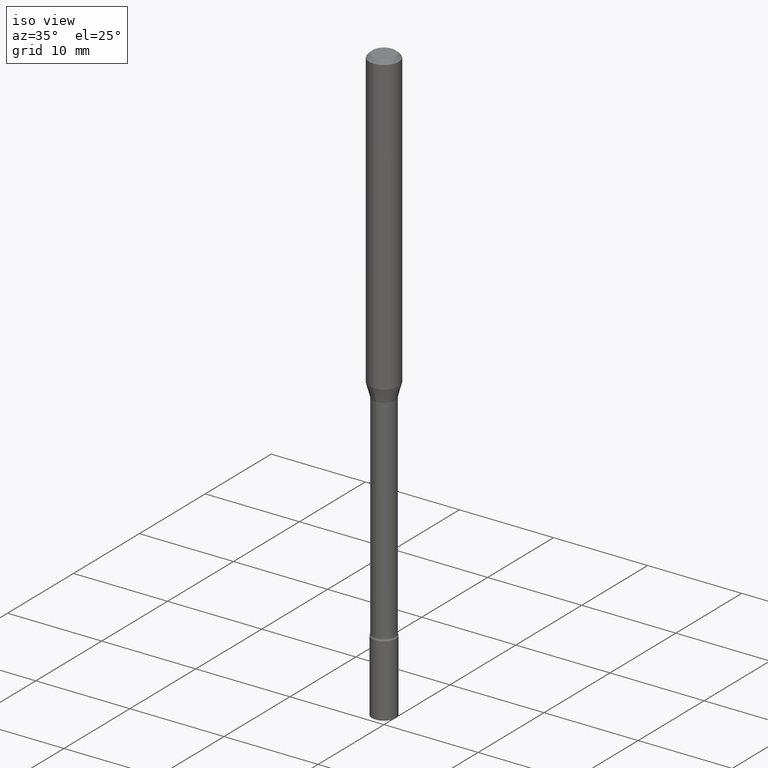
[diagram: clean part render]
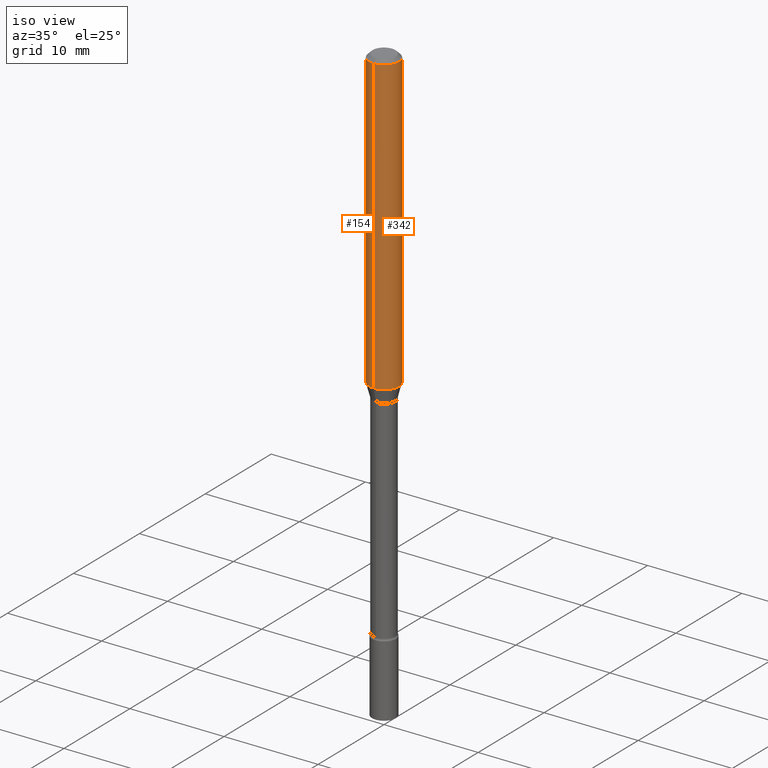
[diagram: same view with one multi-face feature highlighted, each face labeled with its STEP entity id]
A machine part, iso view. The highlighted faces form ONE feature: a constant-radius fillet chain: 2 tangent blend faces with common blend radius 1.5875 mm. The faces share edges in the B-rep.
Their STEP definitions:
[1] entity #154 (Cylinder):
#9 = CIRCLE ( 'NONE', #197, 0.06250000000000000000 ) ;
#15 = FACE_OUTER_BOUND ( 'NONE', #52, .T. ) ;
#24 = CARTESIAN_POINT ( 'NONE',  ( -4.364351673553610517E-16, -0.06250000000000431599, -1.242153212482682623 ) ) ;
#45 = DIRECTION ( 'NONE',  ( -2.445545263393186245E-29, 3.491371847769544536E-15, 1.000000000000000000 ) ) ;
#52 = EDGE_LOOP ( 'NONE', ( #332, #376, #435, #519 ) ) ;
#83 = CARTESIAN_POINT ( 'NONE',  ( -4.364351673553912750E-16, -0.06250000000000005551, -0.01499999999999981209 ) ) ;
#113 = CARTESIAN_POINT ( 'NONE',  ( 4.440892098500625669E-16, 0.06250000000000000000, -2.182107404855965335E-16 ) ) ;
#134 = CARTESIAN_POINT ( 'NONE',  ( 0.000000000000000000, 0.000000000000000000, 0.000000000000000000 ) ) ;
#139 = LINE ( 'NONE', #337, #394 ) ;
#154 = ADVANCED_FACE ( 'NONE', ( #15 ), #174, .T. ) ;
#174 = CYLINDRICAL_SURFACE ( 'NONE', #454, 0.06250000000000000000 ) ;
#178 = DIRECTION ( 'NONE',  ( -2.445545263393186245E-29, 3.491371847769544536E-15, 1.000000000000000000 ) ) ;
#192 = DIRECTION ( 'NONE',  ( -6.982962677686265922E-15, -1.000000000000000000, 4.370956789862821150E-15 ) ) ;
#196 = DIRECTION ( 'NONE',  ( -2.445545263393186245E-29, 3.491371847769544536E-15, 1.000000000000000000 ) ) ;
#197 = AXIS2_PLACEMENT_3D ( 'NONE', #482, #196, #192 ) ;
#221 = VERTEX_POINT ( 'NONE', #83 ) ;
#228 = CARTESIAN_POINT ( 'NONE',  ( 3.668317895089786549E-31, -5.237057771654327552E-17, -0.01500000000000003067 ) ) ;
#246 = DIRECTION ( 'NONE',  ( -6.982962677686265922E-15, -1.000000000000000000, 3.491371847769544536E-15 ) ) ;
#251 = EDGE_CURVE ( 'NONE', #281, #221, #139, .T. ) ;
#263 = CIRCLE ( 'NONE', #514, 0.06250000000000000000 ) ;
#281 = VERTEX_POINT ( 'NONE', #24 ) ;
#286 = VERTEX_POINT ( 'NONE', #459 ) ;
#305 = DIRECTION ( 'NONE',  ( -6.982962677686265922E-15, -1.000000000000000000, 3.483106191921935554E-15 ) ) ;
#310 = VERTEX_POINT ( 'NONE', #422 ) ;
#332 = ORIENTED_EDGE ( 'NONE', *, *, #495, .F. ) ;
#337 = CARTESIAN_POINT ( 'NONE',  ( -4.364351673553916201E-16, -0.06250000000000000000, 2.182107404855965335E-16 ) ) ;
#346 = DIRECTION ( 'NONE',  ( -2.445545263393186245E-29, 3.491371847769544536E-15, 1.000000000000000000 ) ) ;
#350 = LINE ( 'NONE', #113, #467 ) ;
#376 = ORIENTED_EDGE ( 'NONE', *, *, #426, .T. ) ;
#394 = VECTOR ( 'NONE', #178, 39.37007874015748143 ) ;
#422 = CARTESIAN_POINT ( 'NONE',  ( 4.440892098500930859E-16, 0.06249999999999569789, -1.242153212482683067 ) ) ;
#426 = EDGE_CURVE ( 'NONE', #310, #281, #9, .T. ) ;
#429 = DIRECTION ( 'NONE',  ( -2.445545263393186245E-29, 3.491371847769544536E-15, 1.000000000000000000 ) ) ;
#435 = ORIENTED_EDGE ( 'NONE', *, *, #251, .T. ) ;
#454 = AXIS2_PLACEMENT_3D ( 'NONE', #134, #45, #246 ) ;
#459 = CARTESIAN_POINT ( 'NONE',  ( 4.440892098500930859E-16, 0.06249999999999993755, -0.01500000000000024751 ) ) ;
#467 = VECTOR ( 'NONE', #346, 39.37007874015748143 ) ;
#482 = CARTESIAN_POINT ( 'NONE',  ( 3.037741905195655195E-29, -4.336818756678540168E-15, -1.242153212482682845 ) ) ;
#495 = EDGE_CURVE ( 'NONE', #310, #286, #350, .T. ) ;
#502 = EDGE_CURVE ( 'NONE', #286, #221, #263, .T. ) ;
#514 = AXIS2_PLACEMENT_3D ( 'NONE', #228, #429, #305 ) ;
#519 = ORIENTED_EDGE ( 'NONE', *, *, #502, .F. ) ;
[2] entity #342 (Cylinder):
#10 = EDGE_CURVE ( 'NONE', #221, #286, #338, .T. ) ;
#24 = CARTESIAN_POINT ( 'NONE',  ( -4.364351673553610517E-16, -0.06250000000000431599, -1.242153212482682623 ) ) ;
#76 = DIRECTION ( 'NONE',  ( -6.982962677686265922E-15, -1.000000000000000000, 4.370956789862821150E-15 ) ) ;
#77 = AXIS2_PLACEMENT_3D ( 'NONE', #287, #100, #371 ) ;
#83 = CARTESIAN_POINT ( 'NONE',  ( -4.364351673553912750E-16, -0.06250000000000005551, -0.01499999999999981209 ) ) ;
#86 = ORIENTED_EDGE ( 'NONE', *, *, #251, .F. ) ;
#100 = DIRECTION ( 'NONE',  ( -2.445545263393186245E-29, 3.491371847769544536E-15, 1.000000000000000000 ) ) ;
#101 = DIRECTION ( 'NONE',  ( -2.445545263393186245E-29, 3.491371847769544536E-15, 1.000000000000000000 ) ) ;
#113 = CARTESIAN_POINT ( 'NONE',  ( 4.440892098500625669E-16, 0.06250000000000000000, -2.182107404855965335E-16 ) ) ;
#127 = CIRCLE ( 'NONE', #328, 0.06250000000000000000 ) ;
#129 = ORIENTED_EDGE ( 'NONE', *, *, #10, .F. ) ;
#139 = LINE ( 'NONE', #337, #394 ) ;
#178 = DIRECTION ( 'NONE',  ( -2.445545263393186245E-29, 3.491371847769544536E-15, 1.000000000000000000 ) ) ;
#221 = VERTEX_POINT ( 'NONE', #83 ) ;
#251 = EDGE_CURVE ( 'NONE', #281, #221, #139, .T. ) ;
#281 = VERTEX_POINT ( 'NONE', #24 ) ;
#286 = VERTEX_POINT ( 'NONE', #459 ) ;
#287 = CARTESIAN_POINT ( 'NONE',  ( 0.000000000000000000, 0.000000000000000000, 0.000000000000000000 ) ) ;
#291 = DIRECTION ( 'NONE',  ( -6.982962677686265922E-15, -1.000000000000000000, 3.483106191921935554E-15 ) ) ;
#310 = VERTEX_POINT ( 'NONE', #422 ) ;
#324 = ORIENTED_EDGE ( 'NONE', *, *, #495, .T. ) ;
#328 = AXIS2_PLACEMENT_3D ( 'NONE', #428, #474, #76 ) ;
#337 = CARTESIAN_POINT ( 'NONE',  ( -4.364351673553916201E-16, -0.06250000000000000000, 2.182107404855965335E-16 ) ) ;
#338 = CIRCLE ( 'NONE', #401, 0.06250000000000000000 ) ;
#342 = ADVANCED_FACE ( 'NONE', ( #345 ), #512, .T. ) ;
#345 = FACE_OUTER_BOUND ( 'NONE', #498, .T. ) ;
#346 = DIRECTION ( 'NONE',  ( -2.445545263393186245E-29, 3.491371847769544536E-15, 1.000000000000000000 ) ) ;
#350 = LINE ( 'NONE', #113, #467 ) ;
#371 = DIRECTION ( 'NONE',  ( -6.982962677686265922E-15, -1.000000000000000000, 3.491371847769544536E-15 ) ) ;
#394 = VECTOR ( 'NONE', #178, 39.37007874015748143 ) ;
#401 = AXIS2_PLACEMENT_3D ( 'NONE', #460, #101, #291 ) ;
#422 = CARTESIAN_POINT ( 'NONE',  ( 4.440892098500930859E-16, 0.06249999999999569789, -1.242153212482683067 ) ) ;
#428 = CARTESIAN_POINT ( 'NONE',  ( 3.037741905195655195E-29, -4.336818756678540168E-15, -1.242153212482682845 ) ) ;
#439 = ORIENTED_EDGE ( 'NONE', *, *, #476, .T. ) ;
#459 = CARTESIAN_POINT ( 'NONE',  ( 4.440892098500930859E-16, 0.06249999999999993755, -0.01500000000000024751 ) ) ;
#460 = CARTESIAN_POINT ( 'NONE',  ( 3.668317895089786549E-31, -5.237057771654327552E-17, -0.01500000000000003067 ) ) ;
#467 = VECTOR ( 'NONE', #346, 39.37007874015748143 ) ;
#474 = DIRECTION ( 'NONE',  ( -2.445545263393186245E-29, 3.491371847769544536E-15, 1.000000000000000000 ) ) ;
#476 = EDGE_CURVE ( 'NONE', #281, #310, #127, .T. ) ;
#495 = EDGE_CURVE ( 'NONE', #310, #286, #350, .T. ) ;
#498 = EDGE_LOOP ( 'NONE', ( #439, #324, #129, #86 ) ) ;
#512 = CYLINDRICAL_SURFACE ( 'NONE', #77, 0.06250000000000000000 ) ;